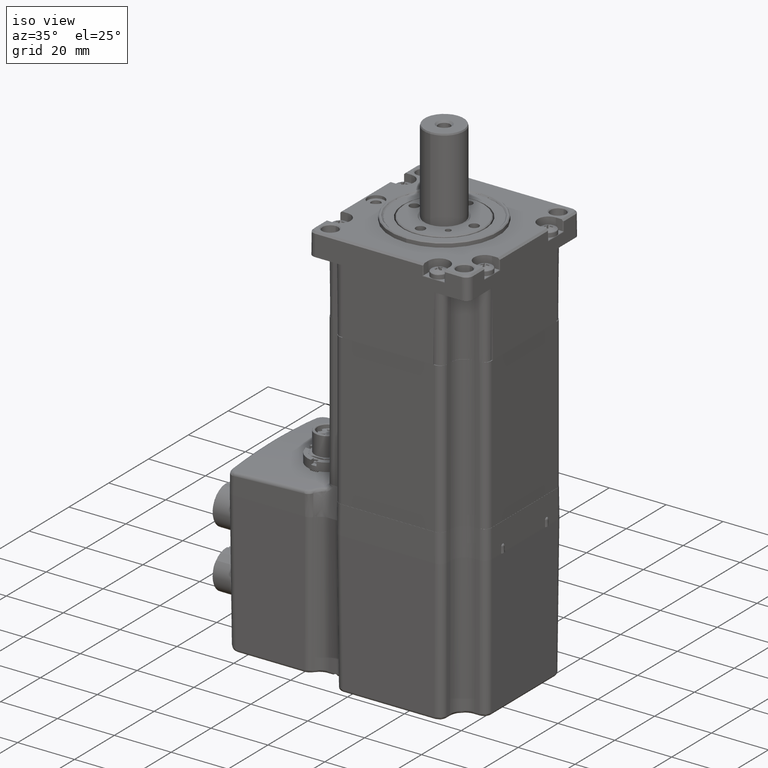
[diagram: clean part render]
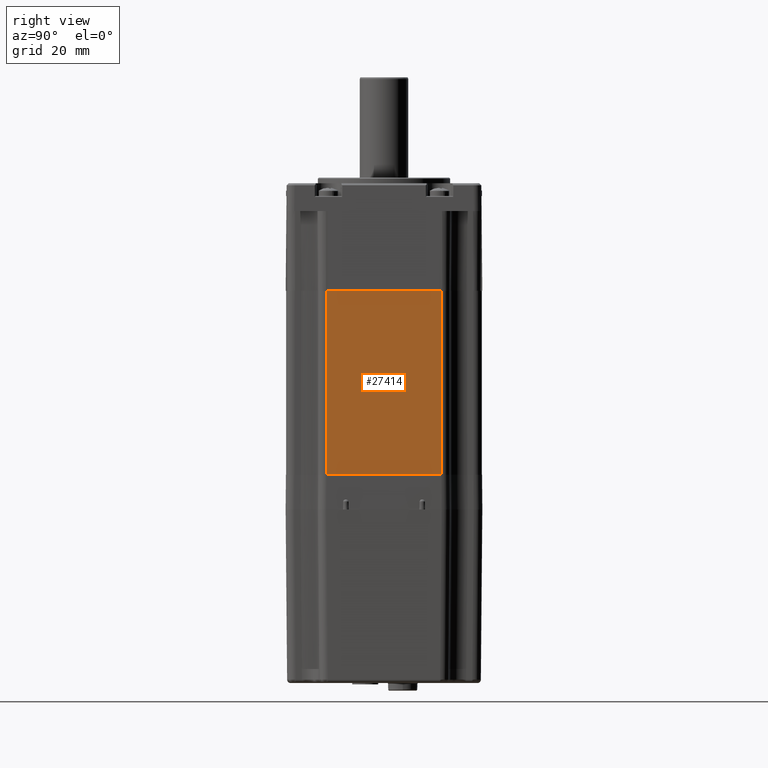
[diagram: tour spotlight — one face highlighted and labeled with its STEP entity id]
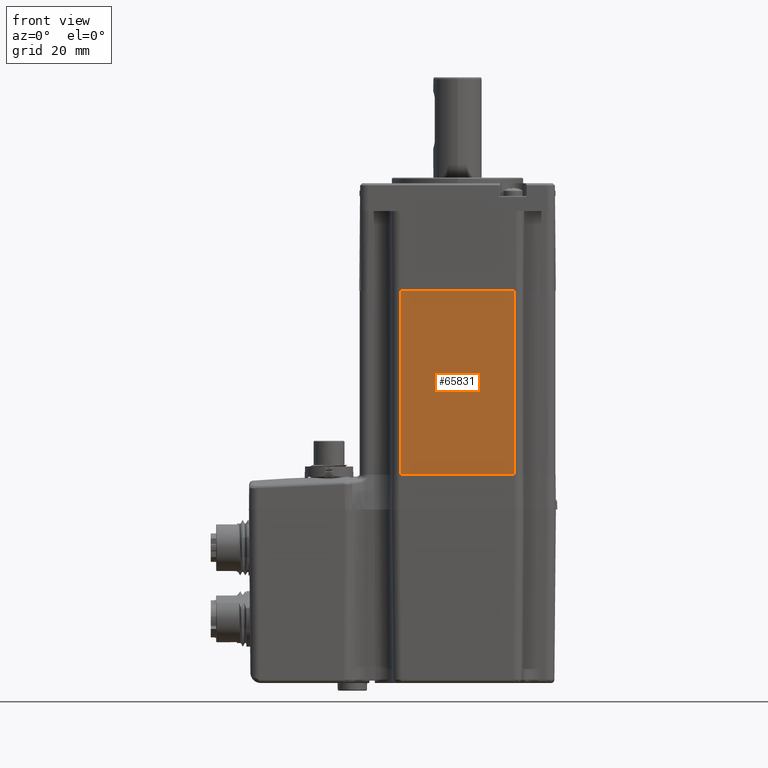
[diagram: tour spotlight — one face highlighted and labeled with its STEP entity id]
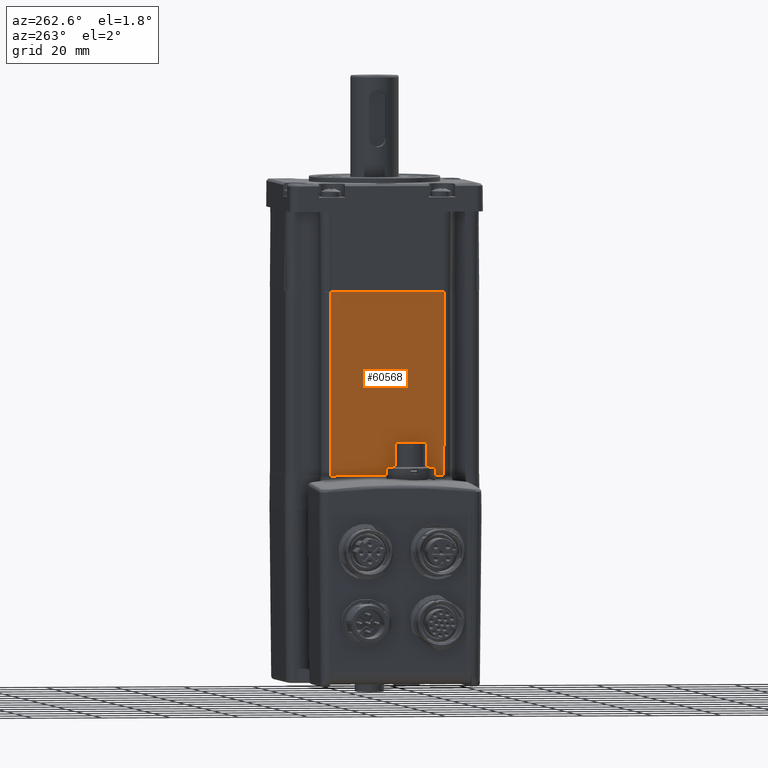
[diagram: tour spotlight — one face highlighted and labeled with its STEP entity id]
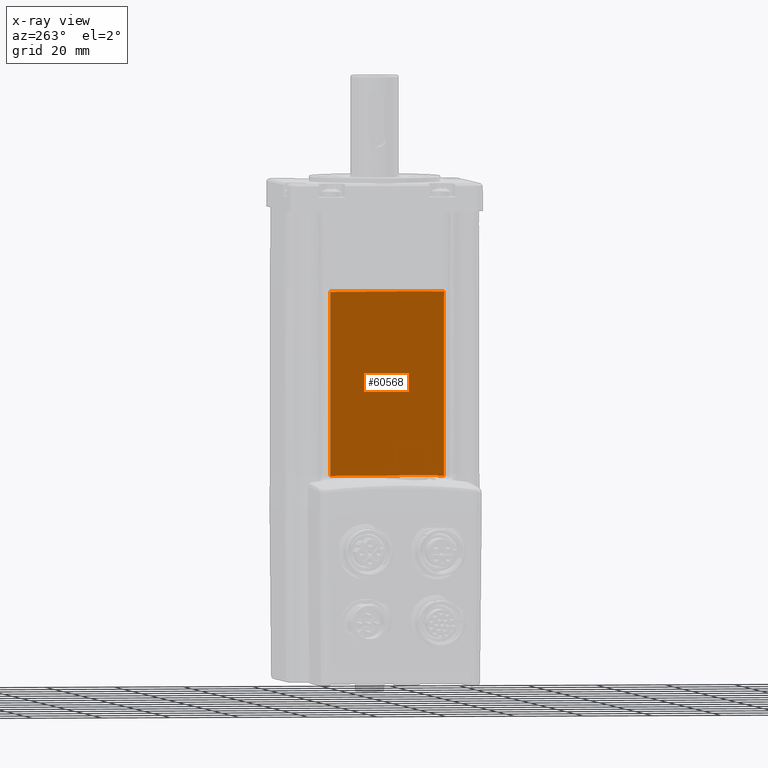
[diagram: x-ray of the same camera — body ghosted, this tour face saturated]
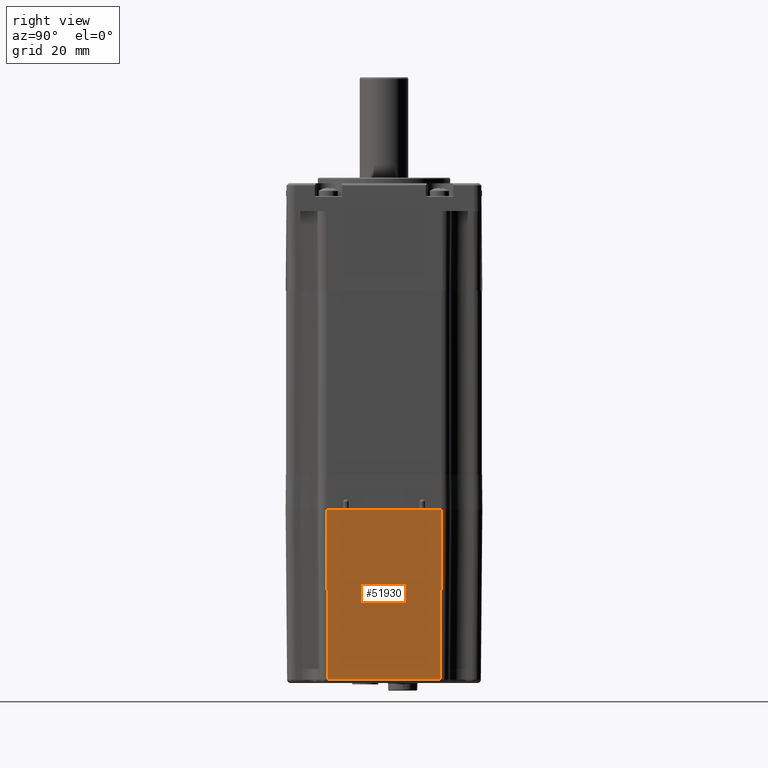
[diagram: tour spotlight — one face highlighted and labeled with its STEP entity id]
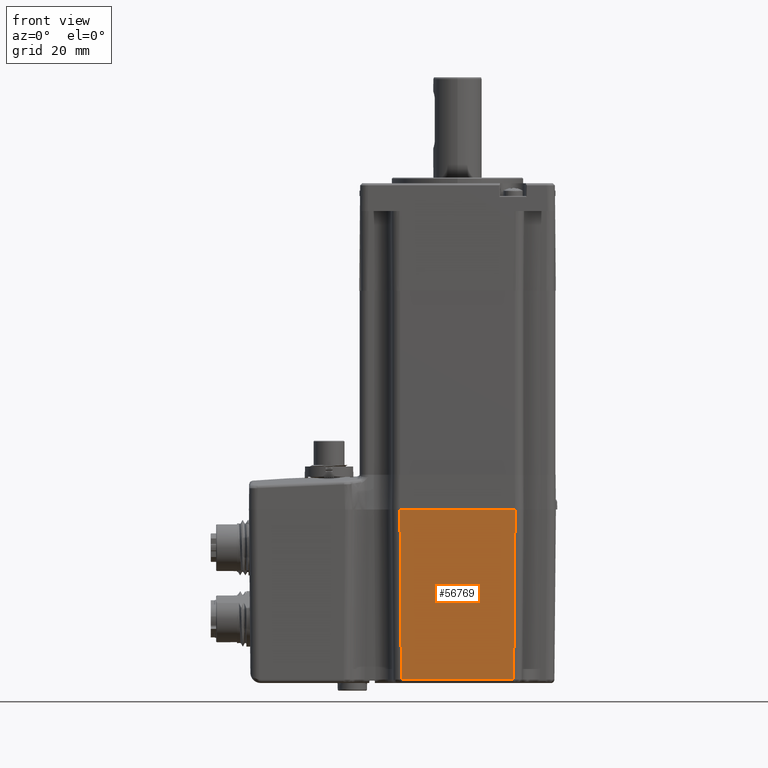
[diagram: tour spotlight — one face highlighted and labeled with its STEP entity id]
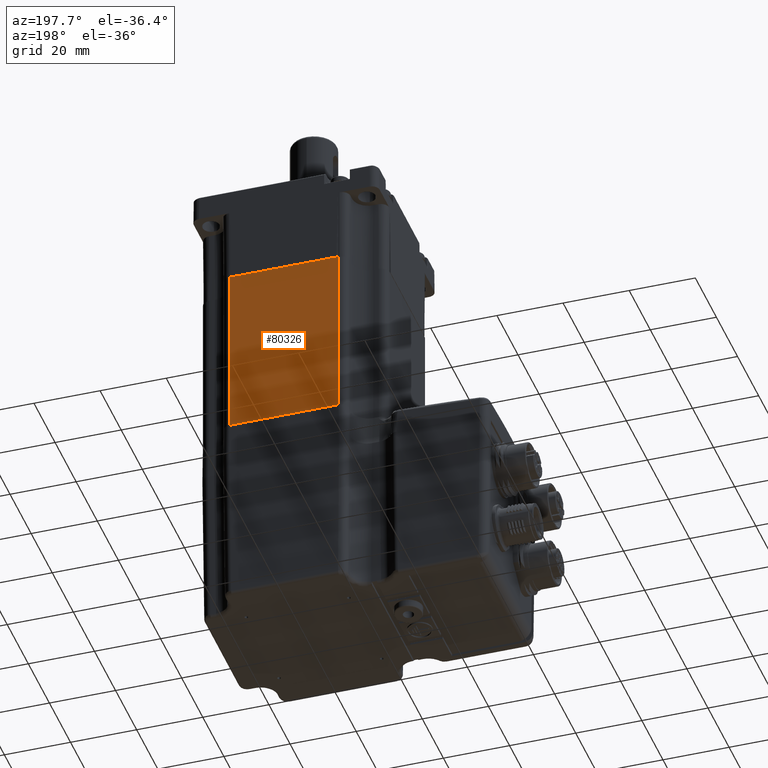
[diagram: tour spotlight — one face highlighted and labeled with its STEP entity id]
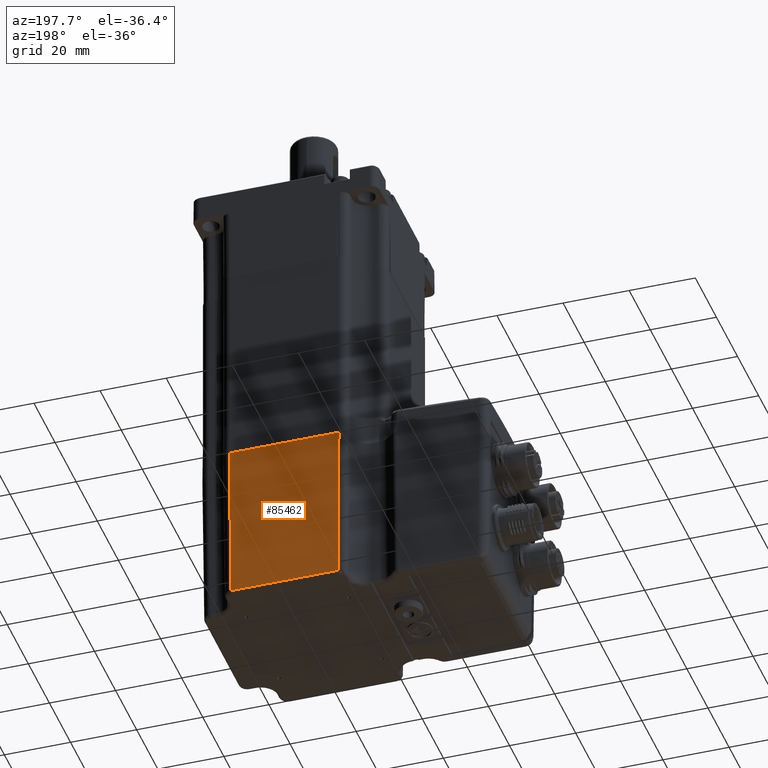
[diagram: tour spotlight — one face highlighted and labeled with its STEP entity id]
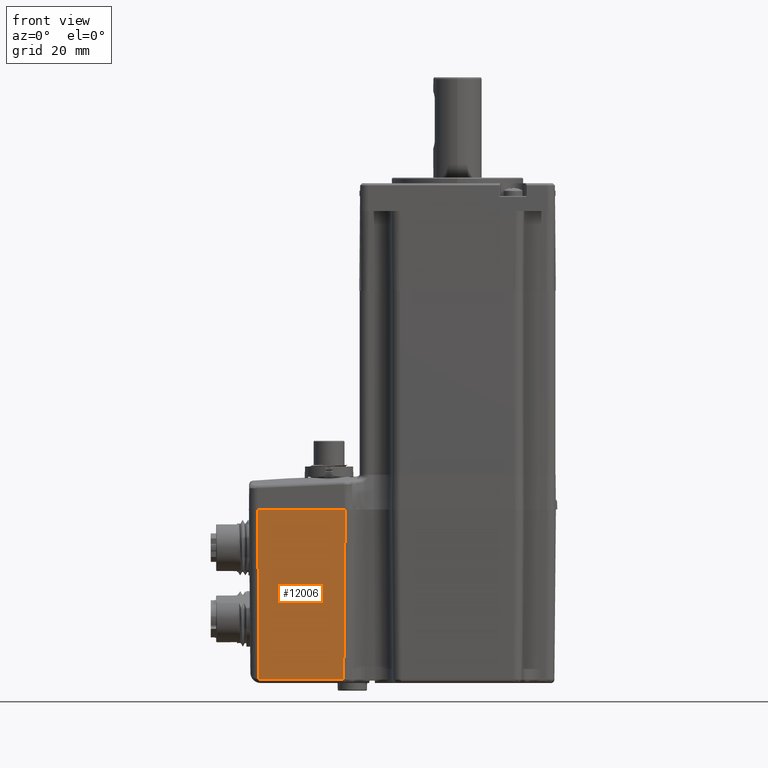
[diagram: tour spotlight — one face highlighted and labeled with its STEP entity id]
A machine part: a face-by-face anatomy tour. The part has 2144 B-rep faces; the first image is the clean iso view, then the 8 largest visible faces are spotlighted one at a time (largest first), each with its STEP entity span.

Face 1 — right view, entity #27414. In plain terms, the highlighted planar face has unit normal (-1, 0, 0).
Definition (entity closure, byte-faithful):
#153 = DIRECTION ( 'NONE',  ( 0.000000000000000000, 1.000000000000000000, 0.000000000000000000 ) ) ;
#154 = DIRECTION ( 'NONE',  ( -0.000000000000000000, -0.000000000000000000, -1.000000000000000000 ) ) ;
#1520 = CARTESIAN_POINT ( 'NONE',  ( 28.19999999999997797, -16.50000000000000000, 9.999999999999973355 ) ) ;
#8674 = EDGE_CURVE ( 'NONE', #30751, #22385, #67334, .T. ) ;
#10054 = ORIENTED_EDGE ( 'NONE', *, *, #82051, .T. ) ;
#10743 = LINE ( 'NONE', #114216, #106921 ) ;
#17672 = VECTOR ( 'NONE', #50428, 1000.000000000000000 ) ;
#17980 = VECTOR ( 'NONE', #153, 1000.000000000000000 ) ;
#19575 = CARTESIAN_POINT ( 'NONE',  ( 28.19999999999997797, -16.50000000000000000, 9.999999999999973355 ) ) ;
#19918 = DIRECTION ( 'NONE',  ( 0.000000000000000000, 0.000000000000000000, 1.000000000000000000 ) ) ;
#22385 = VERTEX_POINT ( 'NONE', #90363 ) ;
#27198 = ORIENTED_EDGE ( 'NONE', *, *, #106358, .F. ) ;
#27414 = ADVANCED_FACE ( 'NONE', ( #110911 ), #110279, .F. ) ;
#30751 = VERTEX_POINT ( 'NONE', #44793 ) ;
#30853 = LINE ( 'NONE', #106705, #65989 ) ;
#32117 = LINE ( 'NONE', #71528, #103278 ) ;
#40638 = VERTEX_POINT ( 'NONE', #120442 ) ;
#44793 = CARTESIAN_POINT ( 'NONE',  ( 28.19999999999997797, -15.99928214989918729, 9.999999999999973355 ) ) ;
#45250 = ORIENTED_EDGE ( 'NONE', *, *, #121790, .F. ) ;
#47677 = CARTESIAN_POINT ( 'NONE',  ( 28.19999999999997797, -16.50000000000000000, 9.999999999999973355 ) ) ;
#48679 = AXIS2_PLACEMENT_3D ( 'NONE', #58135, #85071, #19918 ) ;
#48928 = VERTEX_POINT ( 'NONE', #64301 ) ;
#49635 = DIRECTION ( 'NONE',  ( -0.000000000000000000, -0.000000000000000000, -1.000000000000000000 ) ) ;
#50428 = DIRECTION ( 'NONE',  ( 0.000000000000000000, 1.000000000000000000, 0.000000000000000000 ) ) ;
#52223 = EDGE_LOOP ( 'NONE', ( #10054, #27198, #52634, #107384, #45250, #107411 ) ) ;
#52634 = ORIENTED_EDGE ( 'NONE', *, *, #106348, .F. ) ;
#57070 = DIRECTION ( 'NONE',  ( 0.000000000000000000, 1.000000000000000000, 0.000000000000000000 ) ) ;
#58135 = CARTESIAN_POINT ( 'NONE',  ( 28.19999999999997797, -16.50000000000000000, 9.999999999999973355 ) ) ;
#64301 = CARTESIAN_POINT ( 'NONE',  ( 28.19999999999997797, -16.50000000000000000, -43.00000000000002132 ) ) ;
#65989 = VECTOR ( 'NONE', #49635, 1000.000000000000000 ) ;
#66171 = CARTESIAN_POINT ( 'NONE',  ( 28.19999999999998153, 16.49999999999999289, -43.00000000000002132 ) ) ;
#67334 = LINE ( 'NONE', #1520, #17672 ) ;
#71528 = CARTESIAN_POINT ( 'NONE',  ( 28.19999999999997797, -16.50000000000000000, -43.00000000000002132 ) ) ;
#75547 = VERTEX_POINT ( 'NONE', #66171 ) ;
#75958 = LINE ( 'NONE', #19575, #17980 ) ;
#82051 = EDGE_CURVE ( 'NONE', #48928, #75547, #32117, .T. ) ;
#85071 = DIRECTION ( 'NONE',  ( -1.000000000000000000, 0.000000000000000000, 0.000000000000000000 ) ) ;
#87749 = EDGE_CURVE ( 'NONE', #40638, #48928, #10743, .T. ) ;
#90363 = CARTESIAN_POINT ( 'NONE',  ( 28.19999999999997797, 15.99928214989793140, 9.999999999999973355 ) ) ;
#103278 = VECTOR ( 'NONE', #119754, 1000.000000000000000 ) ;
#105485 = VERTEX_POINT ( 'NONE', #116261 ) ;
#106348 = EDGE_CURVE ( 'NONE', #22385, #105485, #75958, .T. ) ;
#106358 = EDGE_CURVE ( 'NONE', #105485, #75547, #30853, .T. ) ;
#106705 = CARTESIAN_POINT ( 'NONE',  ( 28.19999999999997797, 16.49999999999999289, 9.999999999999973355 ) ) ;
#106921 = VECTOR ( 'NONE', #154, 1000.000000000000000 ) ;
#107377 = VECTOR ( 'NONE', #57070, 1000.000000000000000 ) ;
#107384 = ORIENTED_EDGE ( 'NONE', *, *, #8674, .F. ) ;
#107411 = ORIENTED_EDGE ( 'NONE', *, *, #87749, .T. ) ;
#110279 = PLANE ( 'NONE',  #48679 ) ;
#110911 = FACE_OUTER_BOUND ( 'NONE', #52223, .T. ) ;
#114216 = CARTESIAN_POINT ( 'NONE',  ( 28.19999999999997797, -16.50000000000000000, 9.999999999999973355 ) ) ;
#115327 = LINE ( 'NONE', #47677, #107377 ) ;
#116261 = CARTESIAN_POINT ( 'NONE',  ( 28.19999999999997797, 16.49999999999999289, 9.999999999999973355 ) ) ;
#119754 = DIRECTION ( 'NONE',  ( 0.000000000000000000, 1.000000000000000000, 0.000000000000000000 ) ) ;
#120442 = CARTESIAN_POINT ( 'NONE',  ( 28.19999999999997797, -16.50000000000000000, 9.999999999999973355 ) ) ;
#121790 = EDGE_CURVE ( 'NONE', #40638, #30751, #115327, .T. ) ;

Face 2 — front view, entity #65831. In plain terms, the highlighted planar face has unit normal (0, 1, 0).
Definition (entity closure, byte-faithful):
#110 = CARTESIAN_POINT ( 'NONE',  ( -15.99928214989790654, -28.20000000000000995, 9.999999999999973355 ) ) ;
#2266 = VECTOR ( 'NONE', #103801, 1000.000000000000000 ) ;
#3221 = FACE_OUTER_BOUND ( 'NONE', #45777, .T. ) ;
#3842 = PLANE ( 'NONE',  #32459 ) ;
#7021 = VECTOR ( 'NONE', #24350, 1000.000000000000000 ) ;
#7320 = EDGE_CURVE ( 'NONE', #98671, #120581, #90752, .T. ) ;
#10996 = VECTOR ( 'NONE', #113308, 1000.000000000000000 ) ;
#12247 = LINE ( 'NONE', #40485, #58871 ) ;
#15947 = CARTESIAN_POINT ( 'NONE',  ( 16.50000000000000355, -28.20000000000000995, 9.999999999999973355 ) ) ;
#22961 = LINE ( 'NONE', #32354, #32637 ) ;
#23906 = DIRECTION ( 'NONE',  ( 0.000000000000000000, 1.000000000000000000, 0.000000000000000000 ) ) ;
#24246 = VERTEX_POINT ( 'NONE', #91347 ) ;
#24350 = DIRECTION ( 'NONE',  ( -0.000000000000000000, -0.000000000000000000, -1.000000000000000000 ) ) ;
#25372 = DIRECTION ( 'NONE',  ( -0.000000000000000000, -0.000000000000000000, -1.000000000000000000 ) ) ;
#26257 = LINE ( 'NONE', #64415, #10996 ) ;
#31130 = DIRECTION ( 'NONE',  ( 1.000000000000000000, 0.000000000000000000, 0.000000000000000000 ) ) ;
#32354 = CARTESIAN_POINT ( 'NONE',  ( -16.49999999999998579, -28.20000000000000995, 9.999999999999973355 ) ) ;
#32459 = AXIS2_PLACEMENT_3D ( 'NONE', #109793, #23906, #78451 ) ;
#32637 = VECTOR ( 'NONE', #31130, 1000.000000000000000 ) ;
#37373 = VECTOR ( 'NONE', #25372, 1000.000000000000000 ) ;
#39526 = EDGE_CURVE ( 'NONE', #83527, #55954, #111248, .T. ) ;
#40485 = CARTESIAN_POINT ( 'NONE',  ( -16.49999999999998579, -28.20000000000000995, 9.999999999999973355 ) ) ;
#43157 = CARTESIAN_POINT ( 'NONE',  ( 16.50000000000000355, -28.20000000000000995, -43.00000000000002132 ) ) ;
#45777 = EDGE_LOOP ( 'NONE', ( #59523, #63359, #104504, #78540, #118211, #67259 ) ) ;
#49169 = CARTESIAN_POINT ( 'NONE',  ( -16.49999999999998579, -28.20000000000000995, 9.999999999999973355 ) ) ;
#51574 = EDGE_CURVE ( 'NONE', #24246, #83527, #94987, .T. ) ;
#55915 = CARTESIAN_POINT ( 'NONE',  ( -16.49999999999998579, -28.20000000000000995, 9.999999999999973355 ) ) ;
#55954 = VERTEX_POINT ( 'NONE', #43157 ) ;
#58871 = VECTOR ( 'NONE', #78079, 1000.000000000000000 ) ;
#59523 = ORIENTED_EDGE ( 'NONE', *, *, #69051, .T. ) ;
#60387 = CARTESIAN_POINT ( 'NONE',  ( -16.49999999999998579, -28.20000000000000995, -43.00000000000002132 ) ) ;
#61859 = CARTESIAN_POINT ( 'NONE',  ( 16.50000000000000355, -28.20000000000000995, 9.999999999999973355 ) ) ;
#63359 = ORIENTED_EDGE ( 'NONE', *, *, #39526, .F. ) ;
#64415 = CARTESIAN_POINT ( 'NONE',  ( -16.49999999999998579, -28.20000000000000995, -43.00000000000002132 ) ) ;
#65831 = ADVANCED_FACE ( 'NONE', ( #3221 ), #3842, .F. ) ;
#67259 = ORIENTED_EDGE ( 'NONE', *, *, #7320, .T. ) ;
#69051 = EDGE_CURVE ( 'NONE', #120581, #55954, #26257, .T. ) ;
#78079 = DIRECTION ( 'NONE',  ( 1.000000000000000000, 0.000000000000000000, 0.000000000000000000 ) ) ;
#78451 = DIRECTION ( 'NONE',  ( 0.000000000000000000, -0.000000000000000000, 1.000000000000000000 ) ) ;
#78540 = ORIENTED_EDGE ( 'NONE', *, *, #115831, .F. ) ;
#83527 = VERTEX_POINT ( 'NONE', #61859 ) ;
#90752 = LINE ( 'NONE', #108994, #7021 ) ;
#91347 = CARTESIAN_POINT ( 'NONE',  ( 15.99928214989881958, -28.20000000000000995, 9.999999999999973355 ) ) ;
#94987 = LINE ( 'NONE', #49169, #2266 ) ;
#98671 = VERTEX_POINT ( 'NONE', #55915 ) ;
#98693 = VERTEX_POINT ( 'NONE', #110 ) ;
#103801 = DIRECTION ( 'NONE',  ( 1.000000000000000000, 0.000000000000000000, 0.000000000000000000 ) ) ;
#104504 = ORIENTED_EDGE ( 'NONE', *, *, #51574, .F. ) ;
#108994 = CARTESIAN_POINT ( 'NONE',  ( -16.49999999999998579, -28.20000000000000995, 9.999999999999973355 ) ) ;
#109793 = CARTESIAN_POINT ( 'NONE',  ( -16.49999999999998579, -28.20000000000000995, 9.999999999999973355 ) ) ;
#111248 = LINE ( 'NONE', #15947, #37373 ) ;
#113308 = DIRECTION ( 'NONE',  ( 1.000000000000000000, 0.000000000000000000, 0.000000000000000000 ) ) ;
#115831 = EDGE_CURVE ( 'NONE', #98693, #24246, #12247, .T. ) ;
#117069 = EDGE_CURVE ( 'NONE', #98671, #98693, #22961, .T. ) ;
#118211 = ORIENTED_EDGE ( 'NONE', *, *, #117069, .F. ) ;
#120581 = VERTEX_POINT ( 'NONE', #60387 ) ;

Face 3 — auxiliary view, entity #60568. An x-ray twin of the same camera follows (body ghosted, this face saturated) — the face is partly hidden behind the body. In plain terms, the highlighted planar face has unit normal (1, 0, 0).
Definition (entity closure, byte-faithful):
#307 = DIRECTION ( 'NONE',  ( -0.000000000000000000, -0.000000000000000000, -1.000000000000000000 ) ) ;
#2013 = CARTESIAN_POINT ( 'NONE',  ( -28.19999999999998863, -16.50000000000000000, 9.999999999999973355 ) ) ;
#4426 = AXIS2_PLACEMENT_3D ( 'NONE', #112675, #9821, #7971 ) ;
#7971 = DIRECTION ( 'NONE',  ( 0.000000000000000000, 0.000000000000000000, -1.000000000000000000 ) ) ;
#9721 = VECTOR ( 'NONE', #22772, 1000.000000000000000 ) ;
#9821 = DIRECTION ( 'NONE',  ( 1.000000000000000000, 0.000000000000000000, 0.000000000000000000 ) ) ;
#13360 = CARTESIAN_POINT ( 'NONE',  ( -28.20000000000000995, -14.13329405260344274, -43.00000000000002132 ) ) ;
#15855 = CARTESIAN_POINT ( 'NONE',  ( -28.19999999999998863, 16.49999999999997868, 9.999999999999973355 ) ) ;
#21203 = EDGE_CURVE ( 'NONE', #72733, #110110, #109237, .T. ) ;
#22772 = DIRECTION ( 'NONE',  ( -0.000000000000000000, -1.000000000000000000, -0.000000000000000000 ) ) ;
#22808 = CARTESIAN_POINT ( 'NONE',  ( -28.19999999999998863, 4.711098017543180916, -43.00000000000002132 ) ) ;
#22932 = DIRECTION ( 'NONE',  ( -0.000000000000000000, -0.000000000000000000, -1.000000000000000000 ) ) ;
#24237 = VECTOR ( 'NONE', #307, 1000.000000000000000 ) ;
#27275 = VERTEX_POINT ( 'NONE', #31348 ) ;
#28269 = CARTESIAN_POINT ( 'NONE',  ( -28.20000000000000995, -16.50092639895128244, -43.18140870090758909 ) ) ;
#30611 = EDGE_CURVE ( 'NONE', #77415, #27275, #43546, .T. ) ;
#31348 = CARTESIAN_POINT ( 'NONE',  ( -28.19999999490953968, -16.47850279563879639, -42.99999999994838618 ) ) ;
#32454 = EDGE_CURVE ( 'NONE', #114198, #64867, #79913, .T. ) ;
#33659 = VERTEX_POINT ( 'NONE', #93918 ) ;
#35558 = ORIENTED_EDGE ( 'NONE', *, *, #114920, .T. ) ;
#36101 = CARTESIAN_POINT ( 'NONE',  ( -28.19999999999998863, 15.99928214989761166, 9.999999999999973355 ) ) ;
#36539 = VECTOR ( 'NONE', #72925, 999.9999999999998863 ) ;
#38412 = AXIS2_PLACEMENT_3D ( 'NONE', #44777, #101219, #82941 ) ;
#42486 = EDGE_CURVE ( 'NONE', #55444, #64029, #96233, .T. ) ;
#43546 = LINE ( 'NONE', #90539, #36539 ) ;
#44009 = AXIS2_PLACEMENT_3D ( 'NONE', #116678, #48410, #97302 ) ;
#44714 = CARTESIAN_POINT ( 'NONE',  ( -28.20000000000000995, 16.50092639895127178, -43.18140870090756067 ) ) ;
#44777 = CARTESIAN_POINT ( 'NONE',  ( -28.20000000000000995, 0.000000000000000000, -243.0000000000000568 ) ) ;
#45600 = VECTOR ( 'NONE', #50906, 1000.000000000000000 ) ;
#48214 = EDGE_CURVE ( 'NONE', #55444, #72733, #115476, .T. ) ;
#48307 = VECTOR ( 'NONE', #22932, 1000.000000000000000 ) ;
#48410 = DIRECTION ( 'NONE',  ( 1.000000000000000000, 0.000000000000000000, 0.000000000000000000 ) ) ;
#50906 = DIRECTION ( 'NONE',  ( -0.000000000000000000, -1.000000000000000000, -0.000000000000000000 ) ) ;
#51751 = LINE ( 'NONE', #60495, #48307 ) ;
#55283 = EDGE_LOOP ( 'NONE', ( #57886, #35558, #71111, #99383, #108218, #64666, #87484, #84843, #88277, #119583 ) ) ;
#55444 = VERTEX_POINT ( 'NONE', #15855 ) ;
#57886 = ORIENTED_EDGE ( 'NONE', *, *, #42486, .T. ) ;
#60495 = CARTESIAN_POINT ( 'NONE',  ( -28.19999999999998863, -16.50000000000000000, 9.999999999999973355 ) ) ;
#60568 = ADVANCED_FACE ( 'NONE', ( #76868 ), #66214, .F. ) ;
#62225 = CARTESIAN_POINT ( 'NONE',  ( -28.20000000000000995, -14.13329405260344274, -43.00000000000002132 ) ) ;
#64029 = VERTEX_POINT ( 'NONE', #82839 ) ;
#64666 = ORIENTED_EDGE ( 'NONE', *, *, #30611, .T. ) ;
#64867 = VERTEX_POINT ( 'NONE', #62225 ) ;
#66214 = PLANE ( 'NONE',  #4426 ) ;
#68925 = CARTESIAN_POINT ( 'NONE',  ( -28.19999999999998863, -16.50000000000000000, 9.999999999999973355 ) ) ;
#71111 = ORIENTED_EDGE ( 'NONE', *, *, #114204, .T. ) ;
#72298 = CARTESIAN_POINT ( 'NONE',  ( -28.20000000000000995, 14.13329405260344274, -43.00000000000002132 ) ) ;
#72317 = CARTESIAN_POINT ( 'NONE',  ( -28.20000000000000995, 16.22522527851434759, -41.21969329612326760 ) ) ;
#72733 = VERTEX_POINT ( 'NONE', #36101 ) ;
#72786 = CARTESIAN_POINT ( 'NONE',  ( -28.19999999999998863, -16.50000000000000000, 9.999999999999973355 ) ) ;
#72925 = DIRECTION ( 'NONE',  ( -0.000000000000000000, 0.1391731009600657432, 0.9902680687415703620 ) ) ;
#76868 = FACE_OUTER_BOUND ( 'NONE', #55283, .T. ) ;
#77351 = CARTESIAN_POINT ( 'NONE',  ( -28.19999999999998863, 16.49999999999997868, 9.999999999999973355 ) ) ;
#77415 = VERTEX_POINT ( 'NONE', #28269 ) ;
#79913 = B_SPLINE_CURVE_WITH_KNOTS ( 'NONE', 3,
 ( #81596, #22808, #108062, #13360 ),
 .UNSPECIFIED., .F., .F.,
 ( 4, 4 ),
 ( 0.07171836204191633923, 0.9282816379576952492 ),
 .UNSPECIFIED. ) ;
#80477 = DIRECTION ( 'NONE',  ( 0.000000000000000000, 0.1391731009600657432, -0.9902680687415703620 ) ) ;
#81596 = CARTESIAN_POINT ( 'NONE',  ( -28.20000000000000995, 14.13329405260344274, -43.00000000000002132 ) ) ;
#82839 = CARTESIAN_POINT ( 'NONE',  ( -28.19999999620543463, 16.48157353651147261, -42.99999999996146016 ) ) ;
#82941 = DIRECTION ( 'NONE',  ( 0.000000000000000000, 0.000000000000000000, -1.000000000000000000 ) ) ;
#84724 = EDGE_CURVE ( 'NONE', #33659, #27275, #51751, .T. ) ;
#84843 = ORIENTED_EDGE ( 'NONE', *, *, #93870, .F. ) ;
#87484 = ORIENTED_EDGE ( 'NONE', *, *, #84724, .F. ) ;
#88277 = ORIENTED_EDGE ( 'NONE', *, *, #21203, .F. ) ;
#89574 = LINE ( 'NONE', #68925, #93699 ) ;
#90539 = CARTESIAN_POINT ( 'NONE',  ( -28.20000000000000995, -16.22522527851435470, -41.21969329612326760 ) ) ;
#90545 = LINE ( 'NONE', #72317, #100738 ) ;
#93699 = VECTOR ( 'NONE', #117780, 1000.000000000000000 ) ;
#93870 = EDGE_CURVE ( 'NONE', #110110, #33659, #89574, .T. ) ;
#93918 = CARTESIAN_POINT ( 'NONE',  ( -28.19999999999998863, -16.50000000000000000, 9.999999999999973355 ) ) ;
#96233 = LINE ( 'NONE', #77351, #24237 ) ;
#97302 = DIRECTION ( 'NONE',  ( 0.000000000000000000, 0.000000000000000000, -1.000000000000000000 ) ) ;
#99383 = ORIENTED_EDGE ( 'NONE', *, *, #32454, .T. ) ;
#100463 = CIRCLE ( 'NONE', #38412, 200.4987531152684426 ) ;
#100738 = VECTOR ( 'NONE', #80477, 999.9999999999998863 ) ;
#101219 = DIRECTION ( 'NONE',  ( 1.000000000000000000, 0.000000000000000000, 0.000000000000000000 ) ) ;
#106415 = EDGE_CURVE ( 'NONE', #64867, #77415, #113981, .T. ) ;
#108062 = CARTESIAN_POINT ( 'NONE',  ( -28.19999999999998863, -4.711098017530384041, -43.00000000000002132 ) ) ;
#108218 = ORIENTED_EDGE ( 'NONE', *, *, #106415, .T. ) ;
#109237 = LINE ( 'NONE', #72786, #9721 ) ;
#110110 = VERTEX_POINT ( 'NONE', #121119 ) ;
#112675 = CARTESIAN_POINT ( 'NONE',  ( -28.19999999999998863, -16.50000000000000000, 9.999999999999973355 ) ) ;
#113981 = CIRCLE ( 'NONE', #44009, 200.4987531152684426 ) ;
#114198 = VERTEX_POINT ( 'NONE', #72298 ) ;
#114204 = EDGE_CURVE ( 'NONE', #123826, #114198, #100463, .T. ) ;
#114920 = EDGE_CURVE ( 'NONE', #64029, #123826, #90545, .T. ) ;
#115476 = LINE ( 'NONE', #2013, #45600 ) ;
#116678 = CARTESIAN_POINT ( 'NONE',  ( -28.20000000000000995, 0.000000000000000000, -243.0000000000000568 ) ) ;
#117780 = DIRECTION ( 'NONE',  ( -0.000000000000000000, -1.000000000000000000, -0.000000000000000000 ) ) ;
#119583 = ORIENTED_EDGE ( 'NONE', *, *, #48214, .F. ) ;
#121119 = CARTESIAN_POINT ( 'NONE',  ( -28.19999999999998863, -15.99928214989931163, 9.999999999999973355 ) ) ;
#123826 = VERTEX_POINT ( 'NONE', #44714 ) ;

Face 4 — right view, entity #51930. In plain terms, the highlighted planar face has unit normal (1, -0, -0.0087).
Definition (entity closure, byte-faithful):
#245 = CARTESIAN_POINT ( 'NONE',  ( 28.33726867790758064, 11.79999999999999716, -53.00000000000002132 ) ) ;
#718 = CARTESIAN_POINT ( 'NONE',  ( 28.33726867790759485, 7.806255641895631925E-15, -53.00000000000002132 ) ) ;
#1006 = LINE ( 'NONE', #2842, #23907 ) ;
#1057 = VECTOR ( 'NONE', #38924, 1000.000000000000000 ) ;
#2583 = LINE ( 'NONE', #97276, #59135 ) ;
#2842 = CARTESIAN_POINT ( 'NONE',  ( 28.33455217511032131, -16.58464736744990375, -53.31128038865480789 ) ) ;
#3811 = DIRECTION ( 'NONE',  ( -9.088379826625740621E-17, -1.000000000000000000, -0.000000000000000000 ) ) ;
#5699 = LINE ( 'NONE', #43337, #105437 ) ;
#6943 = ORIENTED_EDGE ( 'NONE', *, *, #122396, .T. ) ;
#7252 = ORIENTED_EDGE ( 'NONE', *, *, #37418, .T. ) ;
#8672 = LINE ( 'NONE', #122066, #32330 ) ;
#12876 = ORIENTED_EDGE ( 'NONE', *, *, #114113, .T. ) ;
#13833 = CARTESIAN_POINT ( 'NONE',  ( 28.33726867790796788, 19.08726867790758774, -53.00000000000002842 ) ) ;
#14350 = EDGE_CURVE ( 'NONE', #31093, #55385, #57288, .T. ) ;
#15145 = CARTESIAN_POINT ( 'NONE',  ( 28.33726867790759485, -10.20000000000000817, -53.00000000000002132 ) ) ;
#15686 = CARTESIAN_POINT ( 'NONE',  ( 28.33726867790759485, -11.79999999999999716, -53.00000000000002132 ) ) ;
#15738 = DIRECTION ( 'NONE',  ( 0.008726203243944238158, 0.008726203243944236423, 0.9999238504775704861 ) ) ;
#18615 = VERTEX_POINT ( 'NONE', #45239 ) ;
#23642 = EDGE_CURVE ( 'NONE', #97099, #31093, #1006, .T. ) ;
#23907 = VECTOR ( 'NONE', #59263, 1000.000000000000114 ) ;
#25873 = VECTOR ( 'NONE', #3811, 1000.000000000000000 ) ;
#26466 = AXIS2_PLACEMENT_3D ( 'NONE', #50747, #81346, #109039 ) ;
#30765 = LINE ( 'NONE', #105972, #101593 ) ;
#31093 = VERTEX_POINT ( 'NONE', #117822 ) ;
#32330 = VECTOR ( 'NONE', #84476, 1000.000000000000000 ) ;
#37418 = EDGE_CURVE ( 'NONE', #18615, #94324, #59572, .T. ) ;
#38924 = DIRECTION ( 'NONE',  ( 2.739037067331802596E-16, -1.000000000000000000, -0.000000000000000000 ) ) ;
#40950 = VERTEX_POINT ( 'NONE', #77004 ) ;
#42298 = ORIENTED_EDGE ( 'NONE', *, *, #23642, .T. ) ;
#43337 = CARTESIAN_POINT ( 'NONE',  ( 28.33745903721664305, 16.58755422955622194, -52.97818698377980695 ) ) ;
#45239 = CARTESIAN_POINT ( 'NONE',  ( 28.33726867790758064, 10.19999999999999396, -53.00000000000002132 ) ) ;
#45846 = EDGE_LOOP ( 'NONE', ( #42298, #88702, #77060, #69537, #6943, #7252, #99274, #12876 ) ) ;
#48704 = CARTESIAN_POINT ( 'NONE',  ( 27.90957600083883605, 16.15967119317841494, -102.0087265355430759 ) ) ;
#50747 = CARTESIAN_POINT ( 'NONE',  ( 28.33726867790758064, 19.08726867790758774, -53.00000000004469314 ) ) ;
#51930 = ADVANCED_FACE ( 'NONE', ( #80119 ), #118361, .T. ) ;
#54352 = CARTESIAN_POINT ( 'NONE',  ( 28.33726867790759485, -16.58736387024715953, -53.00000000000002132 ) ) ;
#55385 = VERTEX_POINT ( 'NONE', #48704 ) ;
#57288 = LINE ( 'NONE', #103125, #86349 ) ;
#58313 = EDGE_CURVE ( 'NONE', #94324, #109124, #98543, .T. ) ;
#59135 = VECTOR ( 'NONE', #87206, 1000.000000000000000 ) ;
#59263 = DIRECTION ( 'NONE',  ( -0.008726203243944238158, 0.008726203243944234689, -0.9999238504775704861 ) ) ;
#59572 = LINE ( 'NONE', #718, #1057 ) ;
#61861 = EDGE_CURVE ( 'NONE', #55385, #40950, #5699, .T. ) ;
#68303 = DIRECTION ( 'NONE',  ( -9.088379826625740621E-17, -1.000000000000000000, -0.000000000000000000 ) ) ;
#69537 = ORIENTED_EDGE ( 'NONE', *, *, #119819, .T. ) ;
#77004 = CARTESIAN_POINT ( 'NONE',  ( 28.33726867790758064, 16.58736387024714887, -53.00000000000002132 ) ) ;
#77060 = ORIENTED_EDGE ( 'NONE', *, *, #61861, .T. ) ;
#80119 = FACE_OUTER_BOUND ( 'NONE', #45846, .T. ) ;
#81346 = DIRECTION ( 'NONE',  ( 0.9999619230641713097, -9.088033768970295121E-17, -0.008726535498373953759 ) ) ;
#84476 = DIRECTION ( 'NONE',  ( 2.739037067331802596E-16, -1.000000000000000000, -0.000000000000000000 ) ) ;
#86349 = VECTOR ( 'NONE', #93061, 1000.000000000000000 ) ;
#87206 = DIRECTION ( 'NONE',  ( -9.088379826625740621E-17, -1.000000000000000000, 0.000000000000000000 ) ) ;
#88702 = ORIENTED_EDGE ( 'NONE', *, *, #14350, .T. ) ;
#93061 = DIRECTION ( 'NONE',  ( 9.088379826625740621E-17, 1.000000000000000000, 7.332653032718073318E-39 ) ) ;
#94324 = VERTEX_POINT ( 'NONE', #15145 ) ;
#97099 = VERTEX_POINT ( 'NONE', #54352 ) ;
#97276 = CARTESIAN_POINT ( 'NONE',  ( 28.33726867790758064, 19.08726867790758774, -53.00000000004469314 ) ) ;
#97549 = VERTEX_POINT ( 'NONE', #245 ) ;
#98543 = LINE ( 'NONE', #13833, #25873 ) ;
#99274 = ORIENTED_EDGE ( 'NONE', *, *, #58313, .T. ) ;
#101593 = VECTOR ( 'NONE', #68303, 1000.000000000000000 ) ;
#103125 = CARTESIAN_POINT ( 'NONE',  ( 27.90957600083883250, 19.08726867790758774, -102.0087265355430759 ) ) ;
#105437 = VECTOR ( 'NONE', #15738, 1000.000000000000114 ) ;
#105972 = CARTESIAN_POINT ( 'NONE',  ( 28.33726867790796788, 19.08726867790758774, -53.00000000000002842 ) ) ;
#109039 = DIRECTION ( 'NONE',  ( -0.008726535498373953759, 0.000000000000000000, -0.9999619230641713097 ) ) ;
#109124 = VERTEX_POINT ( 'NONE', #15686 ) ;
#114113 = EDGE_CURVE ( 'NONE', #109124, #97099, #8672, .T. ) ;
#117822 = CARTESIAN_POINT ( 'NONE',  ( 27.90957600083883250, -16.15967119317841494, -102.0087265355430759 ) ) ;
#118361 = PLANE ( 'NONE',  #26466 ) ;
#119819 = EDGE_CURVE ( 'NONE', #40950, #97549, #2583, .T. ) ;
#122066 = CARTESIAN_POINT ( 'NONE',  ( 28.33726867790759485, 7.806255641895631925E-15, -53.00000000000002132 ) ) ;
#122396 = EDGE_CURVE ( 'NONE', #97549, #18615, #30765, .T. ) ;

Face 5 — front view, entity #56769. In plain terms, the highlighted planar face has unit normal (-0, -1, -0.0087).
Definition (entity closure, byte-faithful):
#638 = LINE ( 'NONE', #75180, #43146 ) ;
#3076 = FACE_OUTER_BOUND ( 'NONE', #44842, .T. ) ;
#6490 = LINE ( 'NONE', #71061, #35357 ) ;
#6831 = DIRECTION ( 'NONE',  ( -1.000000000000000000, 9.088379826625744319E-17, 0.000000000000000000 ) ) ;
#9784 = CARTESIAN_POINT ( 'NONE',  ( 19.08726867790758064, -28.33726867790760551, -53.00000000004469314 ) ) ;
#10387 = DIRECTION ( 'NONE',  ( -9.088033768970298819E-17, -0.9999619230641713097, -0.008726535498373953759 ) ) ;
#13487 = VERTEX_POINT ( 'NONE', #19289 ) ;
#19289 = CARTESIAN_POINT ( 'NONE',  ( -16.15967119317839362, -27.90957600083885382, -102.0087265355430759 ) ) ;
#19680 = AXIS2_PLACEMENT_3D ( 'NONE', #9784, #10387, #113849 ) ;
#33375 = LINE ( 'NONE', #72769, #104562 ) ;
#35357 = VECTOR ( 'NONE', #64126, 1000.000000000000114 ) ;
#36918 = LINE ( 'NONE', #83270, #53445 ) ;
#38132 = EDGE_CURVE ( 'NONE', #75292, #13487, #6490, .T. ) ;
#43146 = VECTOR ( 'NONE', #114703, 1000.000000000000000 ) ;
#44842 = EDGE_LOOP ( 'NONE', ( #99141, #108485, #100387, #47363 ) ) ;
#47363 = ORIENTED_EDGE ( 'NONE', *, *, #83466, .T. ) ;
#53445 = VECTOR ( 'NONE', #6831, 1000.000000000000000 ) ;
#53729 = CARTESIAN_POINT ( 'NONE',  ( -16.58736387024675096, -28.33726867790760551, -53.00000000000002842 ) ) ;
#56769 = ADVANCED_FACE ( 'NONE', ( #3076 ), #76210, .T. ) ;
#64126 = DIRECTION ( 'NONE',  ( 0.008726203243944239893, 0.008726203243944238158, -0.9999238504775704861 ) ) ;
#71061 = CARTESIAN_POINT ( 'NONE',  ( -16.58464736744988244, -28.33455217511034618, -53.31128038865480789 ) ) ;
#72769 = CARTESIAN_POINT ( 'NONE',  ( 16.58755422955621484, -28.33745903721666437, -52.97818698377980695 ) ) ;
#75180 = CARTESIAN_POINT ( 'NONE',  ( 19.08726867790758064, -27.90957600083885382, -102.0087265355430759 ) ) ;
#75292 = VERTEX_POINT ( 'NONE', #53729 ) ;
#76210 = PLANE ( 'NONE',  #19680 ) ;
#80050 = CARTESIAN_POINT ( 'NONE',  ( 16.58736387024716308, -28.33726867790760551, -53.00000000000002842 ) ) ;
#83270 = CARTESIAN_POINT ( 'NONE',  ( 19.08726867790758064, -28.33726867790760551, -53.00000000004469314 ) ) ;
#83466 = EDGE_CURVE ( 'NONE', #119397, #75292, #36918, .T. ) ;
#99141 = ORIENTED_EDGE ( 'NONE', *, *, #38132, .T. ) ;
#100387 = ORIENTED_EDGE ( 'NONE', *, *, #114501, .T. ) ;
#102767 = EDGE_CURVE ( 'NONE', #13487, #122237, #638, .T. ) ;
#104562 = VECTOR ( 'NONE', #112297, 1000.000000000000114 ) ;
#107345 = CARTESIAN_POINT ( 'NONE',  ( 16.15967119317840783, -27.90957600083885737, -102.0087265355430759 ) ) ;
#108485 = ORIENTED_EDGE ( 'NONE', *, *, #102767, .T. ) ;
#112297 = DIRECTION ( 'NONE',  ( 0.008726203243944236423, -0.008726203243944238158, 0.9999238504775704861 ) ) ;
#113849 = DIRECTION ( 'NONE',  ( -0.000000000000000000, -0.008726535498373953759, 0.9999619230641713097 ) ) ;
#114501 = EDGE_CURVE ( 'NONE', #122237, #119397, #33375, .T. ) ;
#114703 = DIRECTION ( 'NONE',  ( 1.000000000000000000, -9.088379826625744319E-17, 7.332653032718073318E-39 ) ) ;
#119397 = VERTEX_POINT ( 'NONE', #80050 ) ;
#122237 = VERTEX_POINT ( 'NONE', #107345 ) ;

Face 6 — auxiliary view, entity #80326. In plain terms, the highlighted planar face has unit normal (0, -1, 0).
Definition (entity closure, byte-faithful):
#31 = DIRECTION ( 'NONE',  ( -1.000000000000000000, -0.000000000000000000, -0.000000000000000000 ) ) ;
#1180 = DIRECTION ( 'NONE',  ( 0.000000000000000000, -1.000000000000000000, 0.000000000000000000 ) ) ;
#2841 = ORIENTED_EDGE ( 'NONE', *, *, #11028, .T. ) ;
#3055 = EDGE_CURVE ( 'NONE', #119076, #109775, #81790, .T. ) ;
#5416 = DIRECTION ( 'NONE',  ( -1.000000000000000000, -0.000000000000000000, -0.000000000000000000 ) ) ;
#11028 = EDGE_CURVE ( 'NONE', #84311, #98933, #17592, .T. ) ;
#12121 = VECTOR ( 'NONE', #5416, 1000.000000000000000 ) ;
#17592 = LINE ( 'NONE', #65811, #96818 ) ;
#19962 = EDGE_CURVE ( 'NONE', #119076, #84311, #27110, .T. ) ;
#22311 = ORIENTED_EDGE ( 'NONE', *, *, #92179, .F. ) ;
#26205 = EDGE_LOOP ( 'NONE', ( #2841, #102043, #33748, #22311, #86041, #63564 ) ) ;
#26988 = CARTESIAN_POINT ( 'NONE',  ( -16.49999999999998934, 28.19999999999999218, -43.00000000000002132 ) ) ;
#27110 = LINE ( 'NONE', #48956, #117959 ) ;
#33748 = ORIENTED_EDGE ( 'NONE', *, *, #78121, .F. ) ;
#46348 = VECTOR ( 'NONE', #72390, 1000.000000000000000 ) ;
#48188 = CARTESIAN_POINT ( 'NONE',  ( 16.50000000000000355, 28.19999999999999574, -43.00000000000002132 ) ) ;
#48956 = CARTESIAN_POINT ( 'NONE',  ( 16.50000000000000355, 28.19999999999999574, 9.999999999999973355 ) ) ;
#50360 = VECTOR ( 'NONE', #77370, 1000.000000000000000 ) ;
#51668 = CARTESIAN_POINT ( 'NONE',  ( -16.49999999999998934, 28.19999999999999574, 9.999999999999973355 ) ) ;
#58836 = DIRECTION ( 'NONE',  ( 0.000000000000000000, -0.000000000000000000, -1.000000000000000000 ) ) ;
#61156 = VERTEX_POINT ( 'NONE', #121710 ) ;
#63022 = DIRECTION ( 'NONE',  ( -0.000000000000000000, -0.000000000000000000, -1.000000000000000000 ) ) ;
#63564 = ORIENTED_EDGE ( 'NONE', *, *, #19962, .T. ) ;
#64255 = LINE ( 'NONE', #92524, #121535 ) ;
#65811 = CARTESIAN_POINT ( 'NONE',  ( -16.49999999999998934, 28.19999999999999574, -43.00000000000002132 ) ) ;
#68211 = FACE_OUTER_BOUND ( 'NONE', #26205, .T. ) ;
#68661 = AXIS2_PLACEMENT_3D ( 'NONE', #87047, #1180, #58836 ) ;
#71963 = CARTESIAN_POINT ( 'NONE',  ( -15.99928214989803088, 28.19999999999999574, 9.999999999999973355 ) ) ;
#72390 = DIRECTION ( 'NONE',  ( -1.000000000000000000, -0.000000000000000000, -0.000000000000000000 ) ) ;
#77370 = DIRECTION ( 'NONE',  ( -1.000000000000000000, -0.000000000000000000, -0.000000000000000000 ) ) ;
#78121 = EDGE_CURVE ( 'NONE', #113247, #61156, #108745, .T. ) ;
#80326 = ADVANCED_FACE ( 'NONE', ( #68211 ), #116486, .F. ) ;
#81790 = LINE ( 'NONE', #91251, #46348 ) ;
#82481 = LINE ( 'NONE', #110786, #12121 ) ;
#84311 = VERTEX_POINT ( 'NONE', #48188 ) ;
#86041 = ORIENTED_EDGE ( 'NONE', *, *, #3055, .F. ) ;
#87047 = CARTESIAN_POINT ( 'NONE',  ( -16.49999999999998934, 28.19999999999999574, 9.999999999999973355 ) ) ;
#91251 = CARTESIAN_POINT ( 'NONE',  ( -16.49999999999998934, 28.19999999999999574, 9.999999999999973355 ) ) ;
#92179 = EDGE_CURVE ( 'NONE', #109775, #113247, #82481, .T. ) ;
#92524 = CARTESIAN_POINT ( 'NONE',  ( -16.49999999999998934, 28.19999999999999218, 9.999999999999973355 ) ) ;
#96028 = CARTESIAN_POINT ( 'NONE',  ( 16.50000000000000355, 28.19999999999999574, 9.999999999999973355 ) ) ;
#96818 = VECTOR ( 'NONE', #31, 1000.000000000000000 ) ;
#98933 = VERTEX_POINT ( 'NONE', #26988 ) ;
#102043 = ORIENTED_EDGE ( 'NONE', *, *, #104986, .F. ) ;
#104986 = EDGE_CURVE ( 'NONE', #61156, #98933, #64255, .T. ) ;
#105412 = DIRECTION ( 'NONE',  ( -0.000000000000000000, -0.000000000000000000, -1.000000000000000000 ) ) ;
#108745 = LINE ( 'NONE', #51668, #50360 ) ;
#109775 = VERTEX_POINT ( 'NONE', #123099 ) ;
#110786 = CARTESIAN_POINT ( 'NONE',  ( -16.49999999999998934, 28.19999999999999574, 9.999999999999973355 ) ) ;
#113247 = VERTEX_POINT ( 'NONE', #71963 ) ;
#116486 = PLANE ( 'NONE',  #68661 ) ;
#117959 = VECTOR ( 'NONE', #105412, 1000.000000000000000 ) ;
#119076 = VERTEX_POINT ( 'NONE', #96028 ) ;
#121535 = VECTOR ( 'NONE', #63022, 1000.000000000000000 ) ;
#121710 = CARTESIAN_POINT ( 'NONE',  ( -16.49999999999998934, 28.19999999999999218, 9.999999999999973355 ) ) ;
#123099 = CARTESIAN_POINT ( 'NONE',  ( 15.99928214989849629, 28.19999999999999574, 9.999999999999973355 ) ) ;

Face 7 — auxiliary view, entity #85462. In plain terms, the highlighted planar face has unit normal (0, 1, -0.0087).
Definition (entity closure, byte-faithful):
#648 = CARTESIAN_POINT ( 'NONE',  ( 16.15967119317841494, 27.90957600083885382, -102.0087265355430759 ) ) ;
#797 = LINE ( 'NONE', #2002, #32650 ) ;
#2002 = CARTESIAN_POINT ( 'NONE',  ( -19.08726867790757353, 28.33726867790760906, -53.00000000004469314 ) ) ;
#5911 = ORIENTED_EDGE ( 'NONE', *, *, #10779, .T. ) ;
#10779 = EDGE_CURVE ( 'NONE', #70220, #17193, #797, .T. ) ;
#11162 = VERTEX_POINT ( 'NONE', #648 ) ;
#15331 = CARTESIAN_POINT ( 'NONE',  ( -19.08726867790757353, 27.90957600083885737, -102.0087265355430759 ) ) ;
#17193 = VERTEX_POINT ( 'NONE', #25316 ) ;
#25316 = CARTESIAN_POINT ( 'NONE',  ( 16.58736387024717729, 28.33726867790760195, -53.00000000000002842 ) ) ;
#26139 = CARTESIAN_POINT ( 'NONE',  ( 16.58464736744990375, 28.33455217511034618, -53.31128038865480789 ) ) ;
#32650 = VECTOR ( 'NONE', #78462, 1000.000000000000000 ) ;
#39038 = VECTOR ( 'NONE', #90789, 1000.000000000000114 ) ;
#44476 = EDGE_CURVE ( 'NONE', #11162, #53764, #62943, .T. ) ;
#45110 = ORIENTED_EDGE ( 'NONE', *, *, #68970, .T. ) ;
#46522 = DIRECTION ( 'NONE',  ( 1.817606753794059764E-16, 0.9999619230641713097, -0.008726535498373953759 ) ) ;
#53424 = DIRECTION ( 'NONE',  ( 0.000000000000000000, -0.008726535498373953759, -0.9999619230641713097 ) ) ;
#53764 = VERTEX_POINT ( 'NONE', #102159 ) ;
#54697 = FACE_OUTER_BOUND ( 'NONE', #123580, .T. ) ;
#62943 = LINE ( 'NONE', #15331, #94458 ) ;
#68970 = EDGE_CURVE ( 'NONE', #53764, #70220, #110262, .T. ) ;
#70220 = VERTEX_POINT ( 'NONE', #84928 ) ;
#71344 = CARTESIAN_POINT ( 'NONE',  ( -16.58755422955620418, 28.33745903721666792, -52.97818698377980695 ) ) ;
#78462 = DIRECTION ( 'NONE',  ( 1.000000000000000000, -1.817675965325148864E-16, -0.000000000000000000 ) ) ;
#79174 = VECTOR ( 'NONE', #113192, 1000.000000000000114 ) ;
#82454 = EDGE_CURVE ( 'NONE', #17193, #11162, #111989, .T. ) ;
#83185 = ORIENTED_EDGE ( 'NONE', *, *, #82454, .T. ) ;
#84928 = CARTESIAN_POINT ( 'NONE',  ( -16.58736387024675096, 28.33726867790760551, -53.00000000000002842 ) ) ;
#85462 = ADVANCED_FACE ( 'NONE', ( #54697 ), #112328, .T. ) ;
#86488 = AXIS2_PLACEMENT_3D ( 'NONE', #101113, #46522, #53424 ) ;
#90789 = DIRECTION ( 'NONE',  ( -0.008726203243944239893, 0.008726203243944239893, 0.9999238504775704861 ) ) ;
#91808 = DIRECTION ( 'NONE',  ( -1.000000000000000000, 1.817675965325148864E-16, 1.466530606543614664E-38 ) ) ;
#94458 = VECTOR ( 'NONE', #91808, 1000.000000000000000 ) ;
#101113 = CARTESIAN_POINT ( 'NONE',  ( -19.08726867790757353, 28.33726867790760906, -53.00000000004469314 ) ) ;
#102159 = CARTESIAN_POINT ( 'NONE',  ( -16.15967119317839717, 27.90957600083886092, -102.0087265355430759 ) ) ;
#110262 = LINE ( 'NONE', #71344, #39038 ) ;
#111989 = LINE ( 'NONE', #26139, #79174 ) ;
#112328 = PLANE ( 'NONE',  #86488 ) ;
#113192 = DIRECTION ( 'NONE',  ( -0.008726203243944239893, -0.008726203243944236423, -0.9999238504775704861 ) ) ;
#114180 = ORIENTED_EDGE ( 'NONE', *, *, #44476, .T. ) ;
#123580 = EDGE_LOOP ( 'NONE', ( #83185, #114180, #45110, #5911 ) ) ;

Face 8 — front view, entity #12006. In plain terms, the highlighted planar face has unit normal (0, -1, -0.0087).
Definition (entity closure, byte-faithful):
#4102 = FACE_OUTER_BOUND ( 'NONE', #113396, .T. ) ;
#6137 = CARTESIAN_POINT ( 'NONE',  ( -49.18489538338673128, -23.58726867790759485, -53.00000000000002132 ) ) ;
#7555 = EDGE_CURVE ( 'NONE', #29513, #24392, #56713, .T. ) ;
#8874 = ORIENTED_EDGE ( 'NONE', *, *, #122846, .T. ) ;
#11638 = CARTESIAN_POINT ( 'NONE',  ( -32.78944124426719497, -23.15957600083883250, -102.0087265355430759 ) ) ;
#12006 = ADVANCED_FACE ( 'NONE', ( #4102 ), #91214, .T. ) ;
#18071 = CARTESIAN_POINT ( 'NONE',  ( -56.67699165658470406, -23.15957600083884316, -102.0087265355430759 ) ) ;
#18805 = LINE ( 'NONE', #122791, #70033 ) ;
#18849 = ORIENTED_EDGE ( 'NONE', *, *, #25134, .T. ) ;
#21636 = ORIENTED_EDGE ( 'NONE', *, *, #56068, .F. ) ;
#21795 = CARTESIAN_POINT ( 'NONE',  ( -32.36385977192730934, -23.58515747317871813, -53.24192010007177345 ) ) ;
#24392 = VERTEX_POINT ( 'NONE', #11638 ) ;
#24644 =( BOUNDED_CURVE ( )  B_SPLINE_CURVE ( 3, ( #94098, #35818, #65826, #104144 ),
 .UNSPECIFIED., .F., .F. ) 
 B_SPLINE_CURVE_WITH_KNOTS ( ( 4, 4 ),
 ( 6.039172710435890323, 6.283185307179532053 ),
 .UNSPECIFIED. ) 
 CURVE ( )  GEOMETRIC_REPRESENTATION_ITEM ( )  RATIONAL_B_SPLINE_CURVE ( ( 1.000000000000000000, 0.9950443063106476638, 0.9950443063106476638, 1.000000000000000000 ) ) 
 REPRESENTATION_ITEM ( '' )  );
#25134 = EDGE_CURVE ( 'NONE', #86707, #66989, #18805, .T. ) ;
#27321 = CARTESIAN_POINT ( 'NONE',  ( -60.08726867790758774, -23.15957600083884316, -102.0087265355430759 ) ) ;
#29513 = VERTEX_POINT ( 'NONE', #18071 ) ;
#33158 = CARTESIAN_POINT ( 'NONE',  ( -32.37995840966588901, -23.58726867790759485, -53.00000000000002842 ) ) ;
#33587 = DIRECTION ( 'NONE',  ( -0.000000000000000000, -0.008726535498373953759, 0.9999619230641713097 ) ) ;
#35818 = CARTESIAN_POINT ( 'NONE',  ( -57.00193930471630210, -23.15974920696308104, -101.9888790795732234 ) ) ;
#36417 = EDGE_CURVE ( 'NONE', #106446, #117707, #71402, .T. ) ;
#37269 = CARTESIAN_POINT ( 'NONE',  ( -32.36781851468759896, -23.58726867790757709, -53.00000000004469314 ) ) ;
#39113 = CARTESIAN_POINT ( 'NONE',  ( -32.36174880469204140, -23.58723557123104797, -52.99999988447643062 ) ) ;
#39556 = B_SPLINE_CURVE_WITH_KNOTS ( 'NONE', 3,
 ( #110879, #6137, #42548, #33158 ),
 .UNSPECIFIED., .F., .F.,
 ( 4, 4 ),
 ( 0.000000000000000000, 1.000000000000000000 ),
 .UNSPECIFIED. ) ;
#40130 = AXIS2_PLACEMENT_3D ( 'NONE', #101287, #81754, #33587 ) ;
#42318 = CARTESIAN_POINT ( 'NONE',  ( -57.16018823648162339, -23.16009304414204806, -101.9494792413703834 ) ) ;
#42548 = CARTESIAN_POINT ( 'NONE',  ( -40.78242689652631014, -23.58726867790759485, -53.00000000000002132 ) ) ;
#44434 = ORIENTED_EDGE ( 'NONE', *, *, #7555, .T. ) ;
#46395 = ORIENTED_EDGE ( 'NONE', *, *, #36417, .T. ) ;
#47708 = VECTOR ( 'NONE', #98296, 1000.000000000000114 ) ;
#55323 = CARTESIAN_POINT ( 'NONE',  ( -32.37995840966588901, -23.58726867790759485, -53.00000000000002842 ) ) ;
#56068 = EDGE_CURVE ( 'NONE', #86707, #117707, #39556, .T. ) ;
#56713 = LINE ( 'NONE', #27321, #99259 ) ;
#65152 = DIRECTION ( 'NONE',  ( 0.008726203243944238158, 0.008726203243944239893, -0.9999238504775704861 ) ) ;
#65826 = CARTESIAN_POINT ( 'NONE',  ( -56.84007161137756725, -23.15957600083884671, -102.0087265355431043 ) ) ;
#66989 = VERTEX_POINT ( 'NONE', #42318 ) ;
#68133 = ORIENTED_EDGE ( 'NONE', *, *, #82185, .T. ) ;
#70033 = VECTOR ( 'NONE', #65152, 1000.000000000000114 ) ;
#71402 = B_SPLINE_CURVE_WITH_KNOTS ( 'NONE', 3,
 ( #39113, #37269, #77327, #94336 ),
 .UNSPECIFIED., .F., .F.,
 ( 4, 4 ),
 ( 0.000000000000000000, 0.0007218790205383187990 ),
 .UNSPECIFIED. ) ;
#77327 = CARTESIAN_POINT ( 'NONE',  ( -32.37388846217674399, -23.58726867790757709, -53.00000000004469314 ) ) ;
#81754 = DIRECTION ( 'NONE',  ( 4.752486090472140307E-16, -0.9999619230641713097, -0.008726535498373953759 ) ) ;
#82185 = EDGE_CURVE ( 'NONE', #66989, #29513, #24644, .T. ) ;
#84875 = DIRECTION ( 'NONE',  ( 1.000000000000000000, 4.752667057470702410E-16, -7.704668349497704161E-34 ) ) ;
#86707 = VERTEX_POINT ( 'NONE', #111171 ) ;
#91214 = PLANE ( 'NONE',  #40130 ) ;
#94098 = CARTESIAN_POINT ( 'NONE',  ( -57.16018823648162339, -23.16009304414204806, -101.9494792413703834 ) ) ;
#94336 = CARTESIAN_POINT ( 'NONE',  ( -32.37995840966588901, -23.58726867790759485, -53.00000000000002842 ) ) ;
#98296 = DIRECTION ( 'NONE',  ( 0.008726203243944229485, -0.008726203243944234689, 0.9999238504775704861 ) ) ;
#99259 = VECTOR ( 'NONE', #84875, 1000.000000000000000 ) ;
#101287 = CARTESIAN_POINT ( 'NONE',  ( -60.08726867790758774, -23.58726867790759130, -53.00000000004469314 ) ) ;
#104144 = CARTESIAN_POINT ( 'NONE',  ( -56.67699165658470406, -23.15957600083884316, -102.0087265355430759 ) ) ;
#106446 = VERTEX_POINT ( 'NONE', #123555 ) ;
#107672 = LINE ( 'NONE', #21795, #47708 ) ;
#110879 = CARTESIAN_POINT ( 'NONE',  ( -57.58736387024715242, -23.58726867790759485, -53.00000000000002842 ) ) ;
#111171 = CARTESIAN_POINT ( 'NONE',  ( -57.58736387024715242, -23.58726867790759485, -53.00000000000002842 ) ) ;
#113396 = EDGE_LOOP ( 'NONE', ( #18849, #68133, #44434, #8874, #46395, #21636 ) ) ;
#117707 = VERTEX_POINT ( 'NONE', #55323 ) ;
#122791 = CARTESIAN_POINT ( 'NONE',  ( -57.58755422955622549, -23.58745903721665016, -52.97818698377980695 ) ) ;
#122846 = EDGE_CURVE ( 'NONE', #24392, #106446, #107672, .T. ) ;
#123555 = CARTESIAN_POINT ( 'NONE',  ( -32.36174880469204140, -23.58723557123104797, -52.99999988447643062 ) ) ;